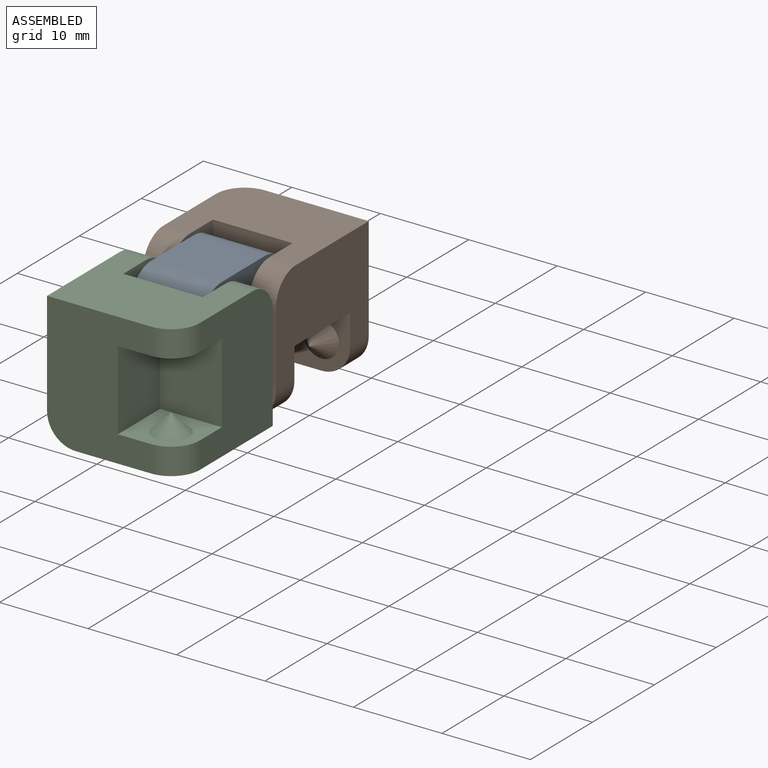
[diagram: assembled view]
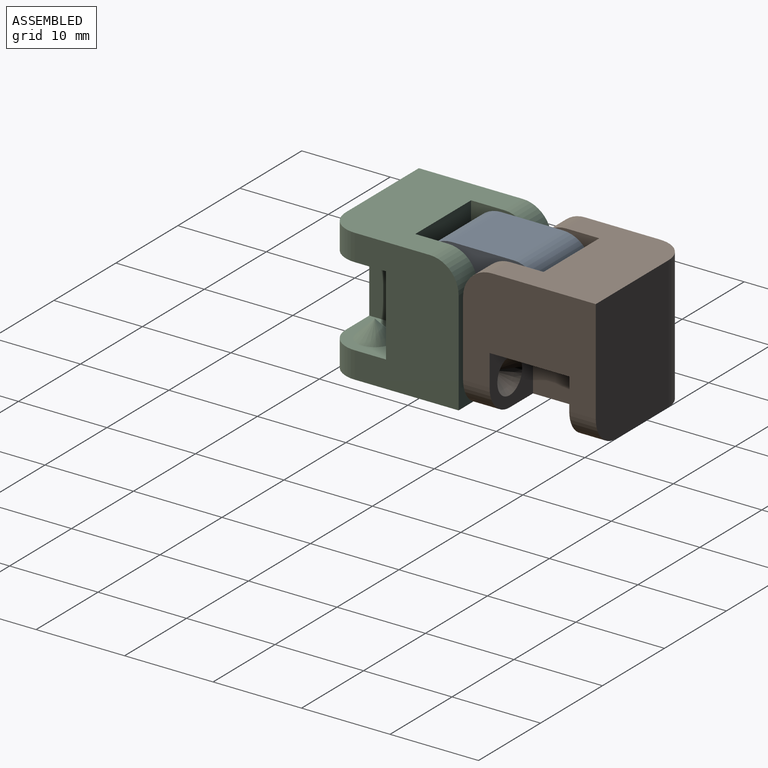
[diagram: assembled view, second angle]
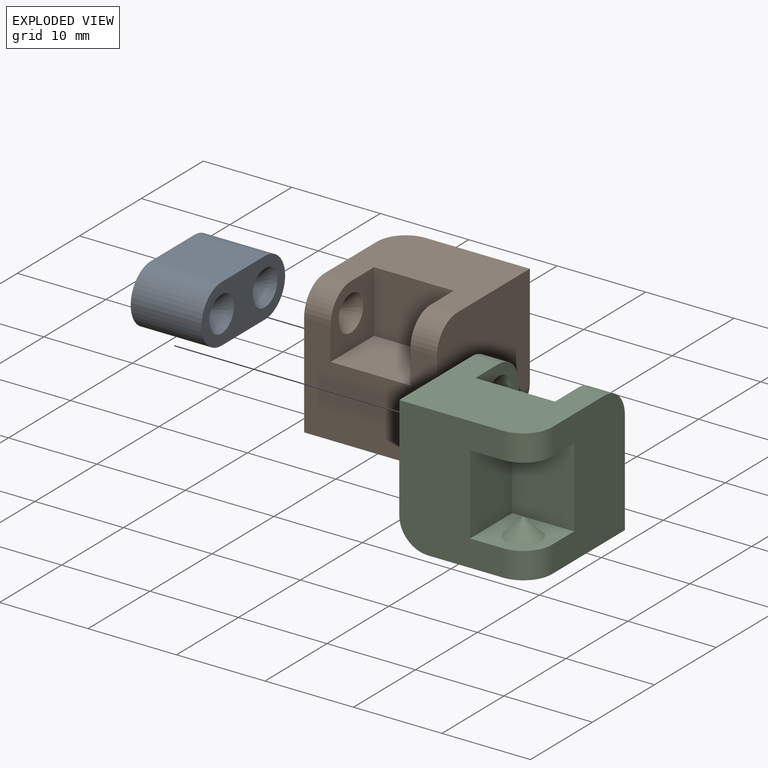
[diagram: exploded view]
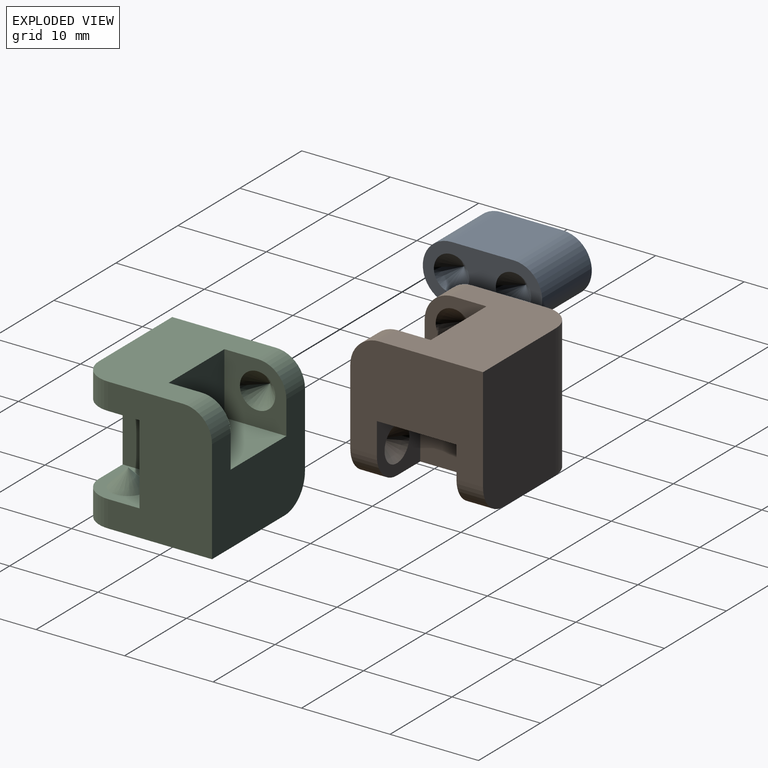
[diagram: exploded view, second angle]
ASSEMBLY  parts=3 mates=2
PART A: 10 faces, bbox 13.5x10x6.5 mm
  f0: plane 13.5x6.5mm, normal (0,1,0), area 53.6mm2, adj f2,f3,f4,f7,f8,f9
  f1: plane 13.5x6.5mm, normal (0,-1,0), area 53.6mm2, adj f2,f3,f5,f6,f8,f9
  f2: plane 8x7mm, normal (0,0,1), area 56mm2, adj f0,f1,f8,f9
  f3: plane 8x7mm, normal (0,0,-1), area 56mm2, adj f0,f1,f8,f9
  f4: cone r=0mm half-angle=45deg, axis (0,1,0), area 17.8mm2, adj f0
  f5: cone r=0mm half-angle=45deg, axis (0,1,0), area 17.8mm2, adj f1
  f6: cone r=0mm half-angle=45deg, axis (0,1,0), area 17.8mm2, adj f1
  f7: cone r=0mm half-angle=45deg, axis (0,1,0), area 17.8mm2, adj f0
  f8: cylinder r=3.25mm len=8mm, axis (0,1,0), area 81.7mm2, adj f0,f1,f2,f3
  f9: cylinder r=3.25mm len=8mm, axis (0,-1,0), area 81.7mm2, adj f0,f1,f2,f3
PART B: 23 faces, bbox 15x15x15 mm
  f0: plane 15x11.75mm, normal (1,0,0), area 142mm2, adj f1,f2,f3,f12,f13,f14,f18,f19
  f1: plane 15x11.75mm, normal (0,-1,0), area 140.2mm2, adj f0,f4,f5,f6,f7,f8,f18,f19
  f2: plane 15x11.75mm, normal (0,0,1), area 140.2mm2, adj f0,f3,f4,f6,f8,f9,f19,f20
  f3: plane 15x11.75mm, normal (0,1,0), area 174mm2, adj f0,f2,f5,f20,f21
  f4: plane 15x11.75mm, normal (-1,0,0), area 174mm2, adj f1,f2,f5,f20,f22
  f5: plane 15x11.75mm, normal (0,0,-1), area 140.2mm2, adj f1,f3,f4,f12,f13,f15,f18,f20
  f6: plane 7x7mm, normal (1,0,0), area 34.2mm2, adj f1,f2,f7,f9,f10,f22
  f7: plane 9x7mm, normal (0,0,1), area 63mm2, adj f1,f6,f8,f9
  f8: plane 7x7mm, normal (-1,0,0), area 34.2mm2, adj f1,f2,f7,f9,f11,f19
  f9: plane 9x7mm, normal (0,-1,0), area 63mm2, adj f2,f6,f7,f8
  f10: cone r=0mm half-angle=45deg, axis (1,0,0), area 17.8mm2, adj f6
  f11: cone r=0mm half-angle=45deg, axis (1,0,0), area 17.8mm2, adj f8
  f12: plane 7x6.8mm, normal (0,1,0), area 32.8mm2, adj f0,f5,f14,f15,f16,f18
  f13: plane 7x6.8mm, normal (0,-1,0), area 32.8mm2, adj f0,f5,f14,f15,f17,f21
  f14: plane 9x7mm, normal (0,0,-1), area 63mm2, adj f0,f12,f13,f15
  f15: plane 9x6.8mm, normal (1,0,0), area 61.2mm2, adj f5,f12,f13,f14
  f16: cone r=2mm half-angle=45deg, axis (0,1,0), area 17.8mm2, adj f12
  f17: cone r=0mm half-angle=45deg, axis (0,1,0), area 17.8mm2, adj f13
  f18: cylinder r=3.25mm len=3.25mm, axis (0,1,0), area 15.3mm2, adj f0,f1,f5,f12
  f19: cylinder r=3.25mm len=3.25mm, axis (-1,0,0), area 15.3mm2, adj f0,f1,f2,f8
  f20: cylinder r=3.25mm len=15mm, axis (0,0,1), area 76.6mm2, adj f2,f3,f4,f5
  f21: cylinder r=3.25mm len=3.25mm, axis (0,1,0), area 15.3mm2, adj f0,f3,f5,f13
  f22: cylinder r=3.25mm len=3.25mm, axis (-1,0,0), area 15.3mm2, adj f1,f2,f4,f6
PART C: same geometry as B
PLACE A rot(axis=(0,0,-1),90deg) t=(-58.1,-39.81,11.27)mm
PLACE B t=(5.19,-4.31,2.77)mm
PLACE C rot(axis=(-1,0,0),90deg) t=(5.19,-49.8,-12.23)mm
MATE revolute A.f5 <-> B.f10  axis (1,0,0) through (-64.27,-31.05,14.52)mm
MATE revolute C.f10 <-> A.f4  axis (1,0,0) through (-55.77,-38.05,14.52)mm
